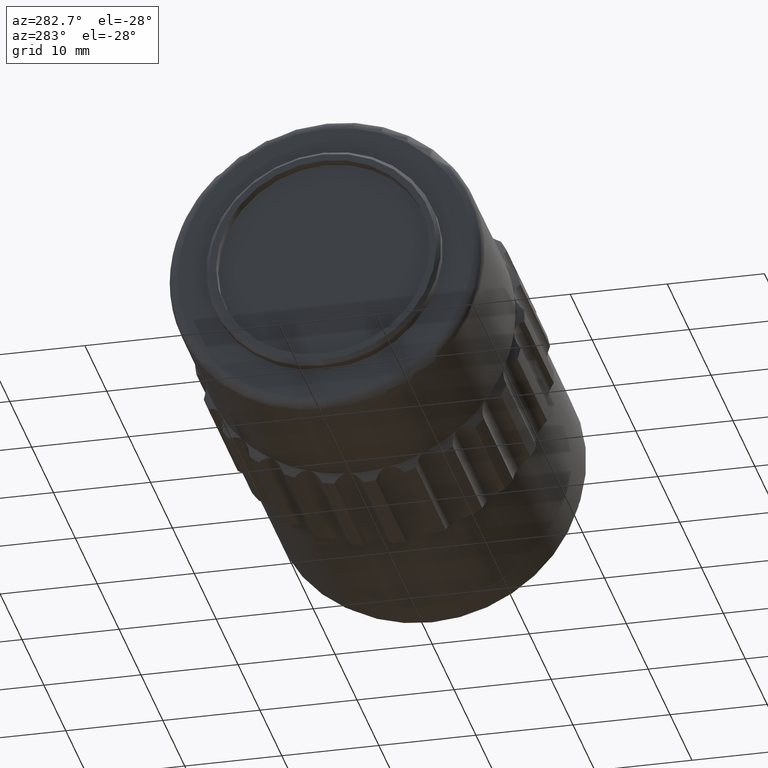
[diagram: clean part render]
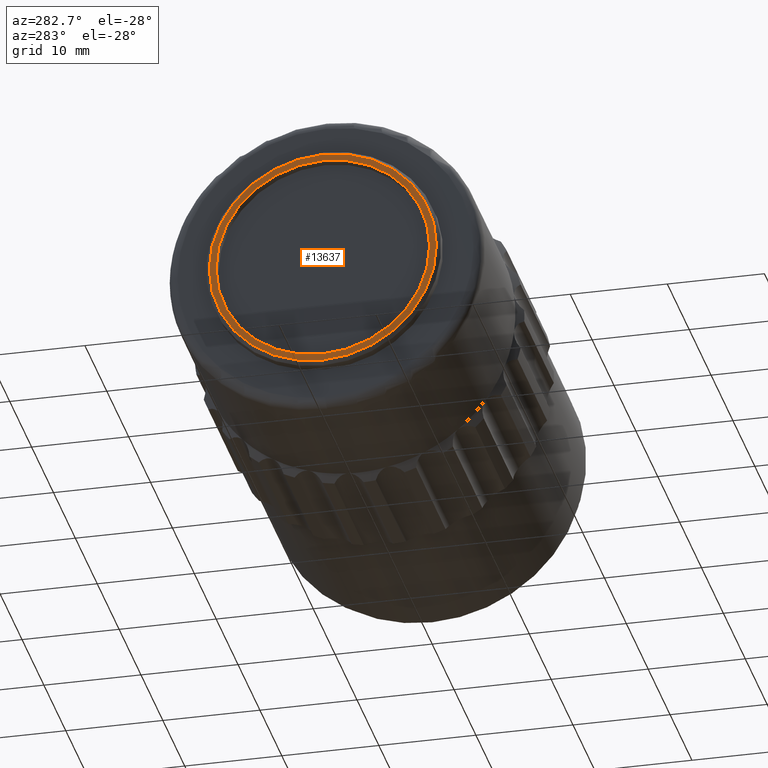
[diagram: same view with one face highlighted and labeled with its STEP entity id]
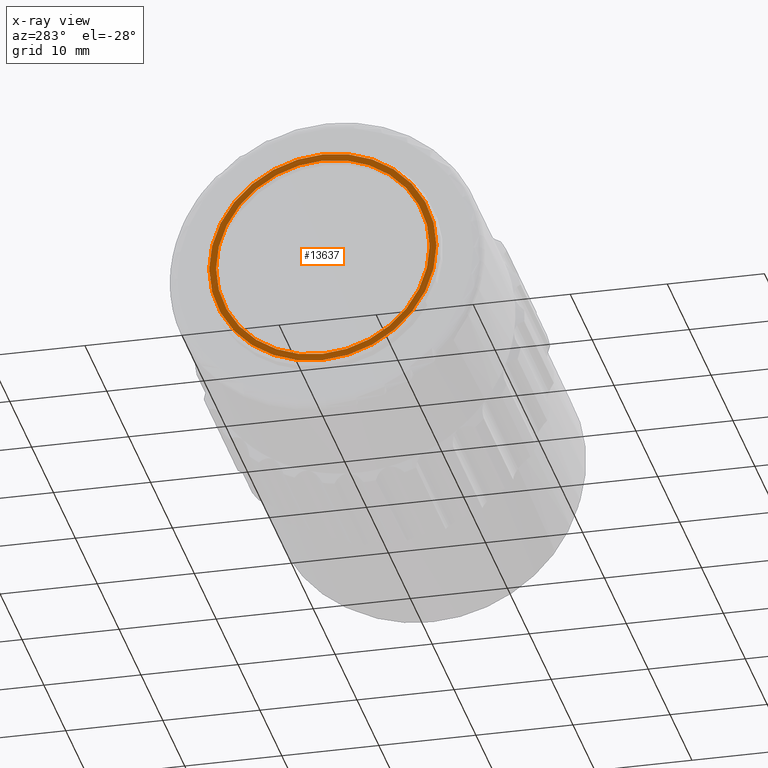
[diagram: x-ray of the same camera — body ghosted, the highlighted face saturated]
A machine part, auxiliary view. The second image highlights one B-rep face of the part: STEP entity #13637.
The next image is the same camera in x-ray: the body ghosted, the highlighted face saturated — about 0% of this face is hidden behind the body in this view.
In plain terms, the highlighted planar face has unit normal (1, 0, 0).
Its self-contained STEP definition (entity closure, byte-faithful):
#257 = EDGE_LOOP ( 'NONE', ( #24525, #16500 ) ) ;
#1409 = AXIS2_PLACEMENT_3D ( 'NONE', #42622, #10451, #34877 ) ;
#3100 = CIRCLE ( 'NONE', #28616, 11.69999999999999574 ) ;
#3597 = EDGE_LOOP ( 'NONE', ( #44443, #22294 ) ) ;
#3817 = PLANE ( 'NONE',  #1409 ) ;
#3949 = DIRECTION ( 'NONE',  ( 0.000000000000000000, 0.000000000000000000, -1.000000000000000000 ) ) ;
#4070 = DIRECTION ( 'NONE',  ( 0.000000000000000000, 0.000000000000000000, 1.000000000000000000 ) ) ;
#5224 = CIRCLE ( 'NONE', #11774, 11.00000000000000000 ) ;
#5937 = CIRCLE ( 'NONE', #23428, 11.69999999999999574 ) ;
#9546 = FACE_OUTER_BOUND ( 'NONE', #3597, .T. ) ;
#10255 = CARTESIAN_POINT ( 'NONE',  ( 0.000000000000000000, 0.000000000000000000, 0.000000000000000000 ) ) ;
#10451 = DIRECTION ( 'NONE',  ( 1.000000000000000000, 0.000000000000000000, 0.000000000000000000 ) ) ;
#10793 = CARTESIAN_POINT ( 'NONE',  ( 0.000000000000000000, 0.000000000000000000, 0.000000000000000000 ) ) ;
#11774 = AXIS2_PLACEMENT_3D ( 'NONE', #36918, #15910, #19765 ) ;
#13637 = ADVANCED_FACE ( 'NONE', ( #9546, #23458 ), #3817, .F. ) ;
#13711 = DIRECTION ( 'NONE',  ( 0.000000000000000000, 0.000000000000000000, -1.000000000000000000 ) ) ;
#14432 = VERTEX_POINT ( 'NONE', #26023 ) ;
#14602 = EDGE_CURVE ( 'NONE', #14432, #40228, #24762, .T. ) ;
#15910 = DIRECTION ( 'NONE',  ( -1.000000000000000000, 0.000000000000000000, 0.000000000000000000 ) ) ;
#16500 = ORIENTED_EDGE ( 'NONE', *, *, #14602, .F. ) ;
#17664 = VERTEX_POINT ( 'NONE', #32380 ) ;
#19765 = DIRECTION ( 'NONE',  ( 0.000000000000000000, 0.000000000000000000, 1.000000000000000000 ) ) ;
#20094 = CARTESIAN_POINT ( 'NONE',  ( 0.000000000000000000, 0.000000000000000000, 0.000000000000000000 ) ) ;
#22294 = ORIENTED_EDGE ( 'NONE', *, *, #27809, .T. ) ;
#23428 = AXIS2_PLACEMENT_3D ( 'NONE', #20094, #34940, #13711 ) ;
#23458 = FACE_BOUND ( 'NONE', #257, .T. ) ;
#24525 = ORIENTED_EDGE ( 'NONE', *, *, #28723, .F. ) ;
#24762 = CIRCLE ( 'NONE', #33507, 11.00000000000000000 ) ;
#26023 = CARTESIAN_POINT ( 'NONE',  ( 0.000000000000000000, 1.347111479062088405E-15, -11.00000000000000000 ) ) ;
#27542 = CARTESIAN_POINT ( 'NONE',  ( 0.000000000000000000, 0.000000000000000000, -11.69999999999999574 ) ) ;
#27809 = EDGE_CURVE ( 'NONE', #17664, #43245, #5937, .T. ) ;
#28616 = AXIS2_PLACEMENT_3D ( 'NONE', #10793, #38658, #3949 ) ;
#28723 = EDGE_CURVE ( 'NONE', #40228, #14432, #5224, .T. ) ;
#32380 = CARTESIAN_POINT ( 'NONE',  ( 0.000000000000000000, 1.457329690985349999E-15, 11.69999999999999574 ) ) ;
#33507 = AXIS2_PLACEMENT_3D ( 'NONE', #10255, #35361, #4070 ) ;
#33904 = CARTESIAN_POINT ( 'NONE',  ( 0.000000000000000000, 0.000000000000000000, 11.00000000000000000 ) ) ;
#34877 = DIRECTION ( 'NONE',  ( 0.000000000000000000, 0.000000000000000000, -1.000000000000000000 ) ) ;
#34940 = DIRECTION ( 'NONE',  ( -1.000000000000000000, -0.000000000000000000, -0.000000000000000000 ) ) ;
#35361 = DIRECTION ( 'NONE',  ( -1.000000000000000000, 0.000000000000000000, 0.000000000000000000 ) ) ;
#36317 = EDGE_CURVE ( 'NONE', #43245, #17664, #3100, .T. ) ;
#36918 = CARTESIAN_POINT ( 'NONE',  ( 0.000000000000000000, 0.000000000000000000, 0.000000000000000000 ) ) ;
#38658 = DIRECTION ( 'NONE',  ( -1.000000000000000000, -0.000000000000000000, -0.000000000000000000 ) ) ;
#40228 = VERTEX_POINT ( 'NONE', #33904 ) ;
#42622 = CARTESIAN_POINT ( 'NONE',  ( 0.000000000000000000, 0.000000000000000000, 0.000000000000000000 ) ) ;
#43245 = VERTEX_POINT ( 'NONE', #27542 ) ;
#44443 = ORIENTED_EDGE ( 'NONE', *, *, #36317, .T. ) ;